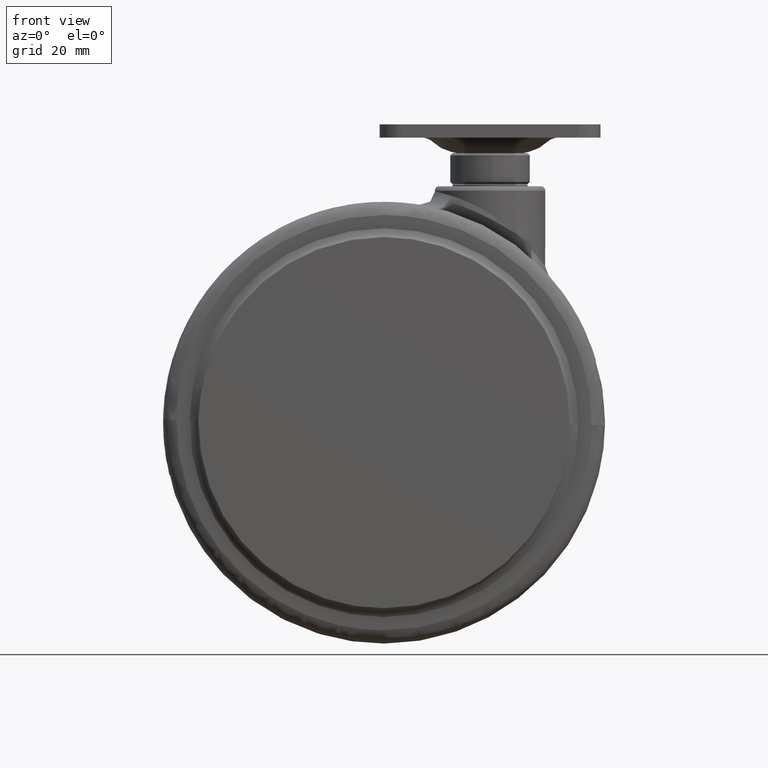
[diagram: clean part render]
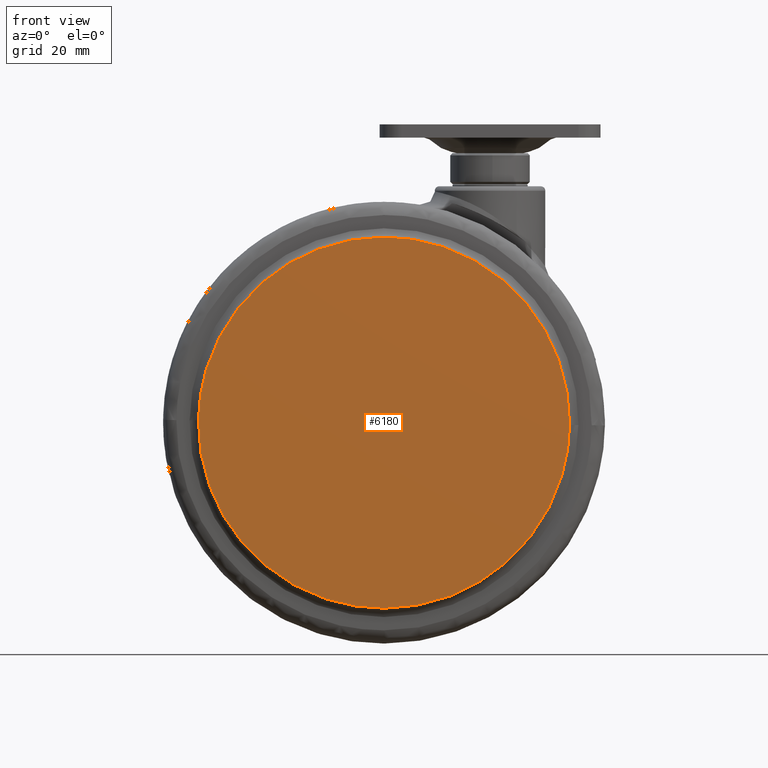
[diagram: same view with one face highlighted and labeled with its STEP entity id]
A machine part, front view. The second image highlights one B-rep face of the part: STEP entity #6180.
In plain terms, the highlighted face is a freeform B-spline surface patch.
Its self-contained STEP definition (entity closure, byte-faithful):
#6040=CARTESIAN_POINT('',(17.996683856651469,-23.499999998956870,-54.027773675106353));
#6041=VERTEX_POINT('',#6040);
#6055=CARTESIAN_POINT('',(-24.0,-23.500000000000011,-95.500000000000114));
#6056=VERTEX_POINT('',#6055);
#6057=CARTESIAN_POINT('',(-24.0,-23.500000000000011,-95.500000000000114));
#6058=CARTESIAN_POINT('',(17.475501056148484,-23.499999999478451,-95.500000000000625));
#6059=CARTESIAN_POINT('',(17.996683856651480,-23.499999998956877,-54.027773675106346));
#6067=(BOUNDED_CURVE()B_SPLINE_CURVE(2,(#6057,#6058,#6059),.UNSPECIFIED.,.F.,.U.)B_SPLINE_CURVE_WITH_KNOTS((3,3),(0.0,0.247784295921710),.UNSPECIFIED.)CURVE()GEOMETRIC_REPRESENTATION_ITEM()RATIONAL_B_SPLINE_CURVE((1.0,0.709702639984262,0.994854295643970))REPRESENTATION_ITEM(''));
#6068=EDGE_CURVE('',#6056,#6041,#6067,.T.);
#6070=CARTESIAN_POINT('',(-65.996683856651472,-23.499999998956870,-52.972226324893647));
#6071=VERTEX_POINT('',#6070);
#6072=CARTESIAN_POINT('',(-65.996683856651472,-23.499999998956870,-52.972226324893647));
#6073=CARTESIAN_POINT('',(-66.000000000090949,-23.499999998960110,-53.236102744337302));
#6074=CARTESIAN_POINT('',(-66.000000000090679,-23.499999998963379,-53.499999999998863));
#6075=CARTESIAN_POINT('',(-66.000000000045048,-23.499999999484967,-95.499999999999488));
#6076=CARTESIAN_POINT('',(-24.0,-23.500000000000011,-95.500000000000114));
#6084=(BOUNDED_CURVE()B_SPLINE_CURVE(2,(#6072,#6073,#6074,#6075,#6076),.UNSPECIFIED.,.F.,.U.)B_SPLINE_CURVE_WITH_KNOTS((3,2,3),(0.747784295921710,0.750000000000000,1.0),.UNSPECIFIED.)CURVE()GEOMETRIC_REPRESENTATION_ITEM()RATIONAL_B_SPLINE_CURVE((0.994854295643970,0.997404141202286,1.0,0.707106781186547,1.0))REPRESENTATION_ITEM(''));
#6085=EDGE_CURVE('',#6071,#6056,#6084,.T.);
#6134=CARTESIAN_POINT('',(-24.0,-23.500000000000000,-11.500000000000000));
#6135=VERTEX_POINT('',#6134);
#6136=CARTESIAN_POINT('',(-24.0,-23.500000000000000,-11.500000000000000));
#6137=CARTESIAN_POINT('',(-65.475501056148502,-23.499999999478433,-11.499999999999421));
#6138=CARTESIAN_POINT('',(-65.996683856651472,-23.499999998956870,-52.972226324893647));
#6146=(BOUNDED_CURVE()B_SPLINE_CURVE(2,(#6136,#6137,#6138),.UNSPECIFIED.,.F.,.U.)B_SPLINE_CURVE_WITH_KNOTS((3,3),(0.500000000000000,0.747784295921710),.UNSPECIFIED.)CURVE()GEOMETRIC_REPRESENTATION_ITEM()RATIONAL_B_SPLINE_CURVE((1.0,0.709702639984262,0.994854295643970))REPRESENTATION_ITEM(''));
#6147=EDGE_CURVE('',#6135,#6071,#6146,.T.);
#6149=CARTESIAN_POINT('',(17.996683856651480,-23.499999998956877,-54.027773675106346));
#6150=CARTESIAN_POINT('',(18.000000000090967,-23.499999998960110,-53.763897255662712));
#6151=CARTESIAN_POINT('',(18.000000000090679,-23.499999998963389,-53.500000000001137));
#6152=CARTESIAN_POINT('',(18.000000000045052,-23.499999999484949,-11.500000000000561));
#6153=CARTESIAN_POINT('',(-24.0,-23.500000000000000,-11.500000000000000));
#6161=(BOUNDED_CURVE()B_SPLINE_CURVE(2,(#6149,#6150,#6151,#6152,#6153),.UNSPECIFIED.,.F.,.U.)B_SPLINE_CURVE_WITH_KNOTS((3,2,3),(0.247784295921710,0.250000000000000,0.500000000000000),.UNSPECIFIED.)CURVE()GEOMETRIC_REPRESENTATION_ITEM()RATIONAL_B_SPLINE_CURVE((0.994854295643970,0.997404141202286,1.0,0.707106781186547,1.0))REPRESENTATION_ITEM(''));
#6162=EDGE_CURVE('',#6041,#6135,#6161,.T.);
#6169=CARTESIAN_POINT('',(-70.192152411135524,-23.500000000000000,-7.304200162808290));
#6170=CARTESIAN_POINT('',(-70.192152411135524,-23.500000000000000,-99.695802090247383));
#6171=CARTESIAN_POINT('',(22.192154664013199,-23.500000000000000,-7.304200162808290));
#6172=CARTESIAN_POINT('',(22.192154664013199,-23.500000000000000,-99.695802090247383));
#6173=B_SPLINE_SURFACE_WITH_KNOTS('',1,1,((#6169,#6171),(#6170,#6172)),.UNSPECIFIED.,.F.,.F.,.U.,(2,2),(2,2),(0.0,92.391601927439098),(0.0,92.384307075148726),.UNSPECIFIED.);
#6174=ORIENTED_EDGE('',*,*,#6068,.T.);
#6175=ORIENTED_EDGE('',*,*,#6162,.T.);
#6176=ORIENTED_EDGE('',*,*,#6147,.T.);
#6177=ORIENTED_EDGE('',*,*,#6085,.T.);
#6178=EDGE_LOOP('',(#6174,#6175,#6176,#6177));
#6179=FACE_OUTER_BOUND('',#6178,.T.);
#6180=ADVANCED_FACE('',(#6179),#6173,.T.);